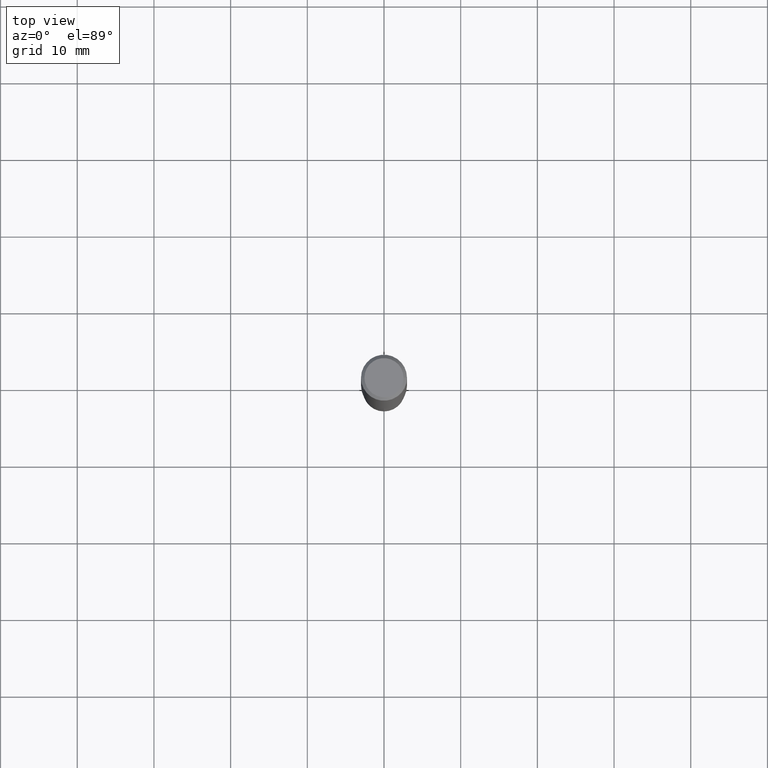
[diagram: clean part render]
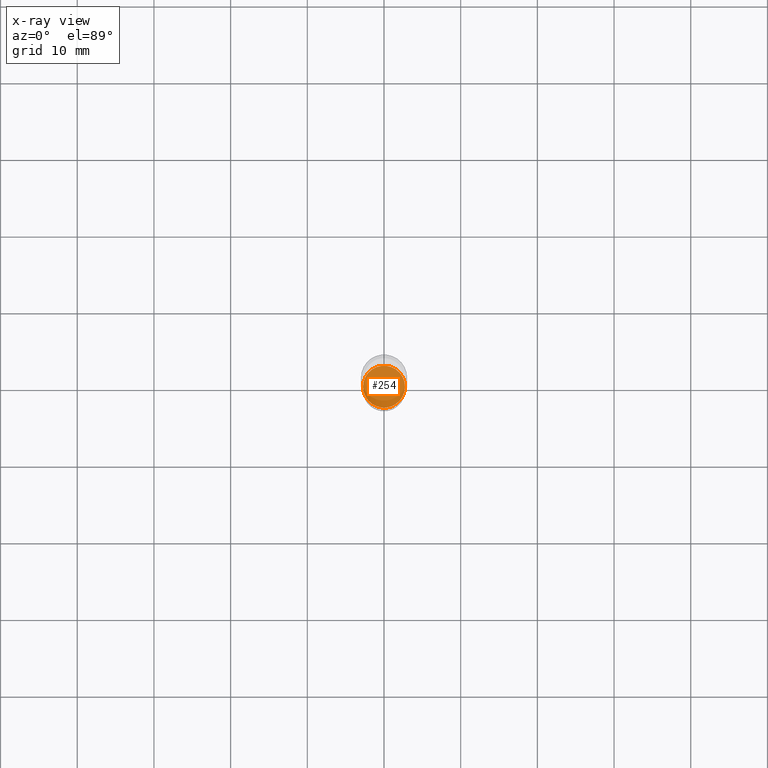
[diagram: x-ray — body ghosted, one internal face saturated and labeled with its STEP entity id]
A machine part, top view, then the same camera in x-ray: the body is ghosted and one INTERNAL B-rep face — a face not visible from any outside direction — is saturated and labeled: STEP entity #254.
In plain terms, the highlighted planar face has unit normal (-0, 0, 1).
Its self-contained STEP definition (entity closure, byte-faithful):
#23 = DIRECTION ( 'NONE',  ( -2.445468806185136597E-29, 3.491481338843145583E-15, 1.000000000000000000 ) ) ;
#28 = CARTESIAN_POINT ( 'NONE',  ( 6.566572838368328165E-29, -9.375325691061615108E-15, -2.685200000000000031 ) ) ;
#29 = CARTESIAN_POINT ( 'NONE',  ( 6.566572838368328165E-29, -9.375325691061615108E-15, -2.685200000000000031 ) ) ;
#32 = DIRECTION ( 'NONE',  ( 1.000000000000000000, -6.982962677686272233E-15, 0.000000000000000000 ) ) ;
#69 = PLANE ( 'NONE',  #289 ) ;
#73 = DIRECTION ( 'NONE',  ( -2.438088387897960049E-29, 3.491481338843145188E-15, 1.000000000000000000 ) ) ;
#110 = DIRECTION ( 'NONE',  ( 1.000000000000000000, -6.982962677686272233E-15, 0.000000000000000000 ) ) ;
#138 = EDGE_CURVE ( 'NONE', #372, #299, #203, .T. ) ;
#139 = CIRCLE ( 'NONE', #210, 0.1077499999999999986 ) ;
#145 = CARTESIAN_POINT ( 'NONE',  ( -0.1077499999999999986, -8.607066666105995080E-15, -2.685200000000000031 ) ) ;
#168 = ORIENTED_EDGE ( 'NONE', *, *, #214, .F. ) ;
#203 = CIRCLE ( 'NONE', #336, 0.1077499999999999986 ) ;
#205 = CARTESIAN_POINT ( 'NONE',  ( 6.566572838368328165E-29, -9.375325691061615108E-15, -2.685200000000000031 ) ) ;
#210 = AXIS2_PLACEMENT_3D ( 'NONE', #205, #23, #32 ) ;
#214 = EDGE_CURVE ( 'NONE', #299, #372, #139, .T. ) ;
#252 = CARTESIAN_POINT ( 'NONE',  ( 0.1077499999999999986, -1.012773991958231076E-14, -2.685200000000000031 ) ) ;
#254 = ADVANCED_FACE ( 'NONE', ( #449 ), #69, .F. ) ;
#289 = AXIS2_PLACEMENT_3D ( 'NONE', #28, #73, #461 ) ;
#291 = EDGE_LOOP ( 'NONE', ( #448, #168 ) ) ;
#299 = VERTEX_POINT ( 'NONE', #145 ) ;
#307 = DIRECTION ( 'NONE',  ( -2.445468806185136597E-29, 3.491481338843145583E-15, 1.000000000000000000 ) ) ;
#336 = AXIS2_PLACEMENT_3D ( 'NONE', #29, #307, #110 ) ;
#372 = VERTEX_POINT ( 'NONE', #252 ) ;
#448 = ORIENTED_EDGE ( 'NONE', *, *, #138, .F. ) ;
#449 = FACE_OUTER_BOUND ( 'NONE', #291, .T. ) ;
#461 = DIRECTION ( 'NONE',  ( 1.000000000000000000, -6.982962677686265922E-15, 4.876176775795935793E-29 ) ) ;